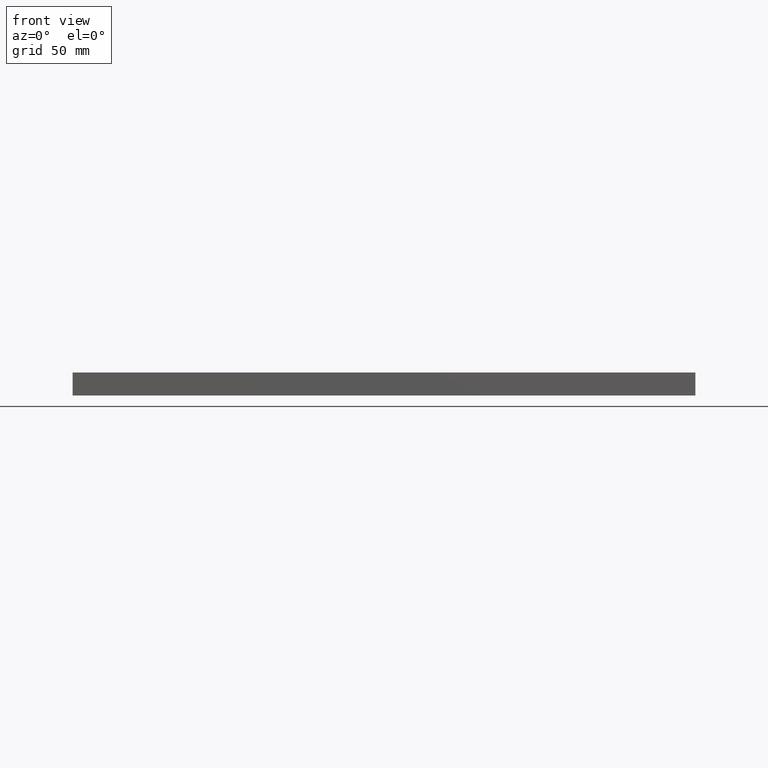
[diagram: clean part render]
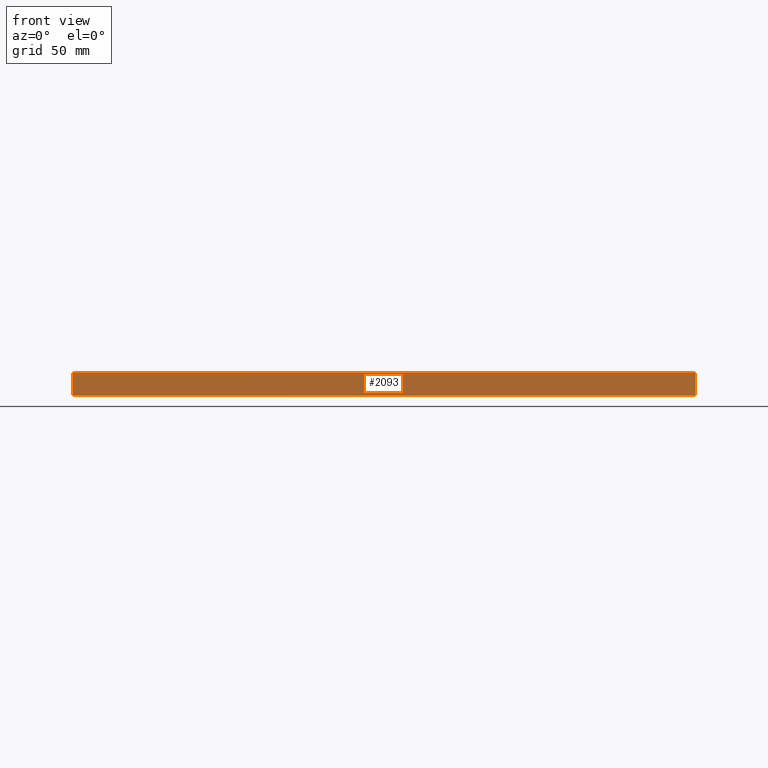
[diagram: same view with one face highlighted and labeled with its STEP entity id]
A machine part, front view. The second image highlights one B-rep face of the part: STEP entity #2093.
In plain terms, the highlighted planar face has unit normal (0, 1, 0).
Its self-contained STEP definition (entity closure, byte-faithful):
#66 = VECTOR ( 'NONE', #5672, 1000.000000000000000 ) ;
#92 = DIRECTION ( 'NONE',  ( 0.0000000000000000000, -0.0000000000000000000, 1.000000000000000000 ) ) ;
#586 = FACE_OUTER_BOUND ( 'NONE', #2677, .T. ) ;
#662 = CARTESIAN_POINT ( 'NONE',  ( 0.0000000000000000000, 0.0000000000000000000, 18.00000000000000000 ) ) ;
#1140 = CARTESIAN_POINT ( 'NONE',  ( 0.0000000000000000000, 0.0000000000000000000, 0.0000000000000000000 ) ) ;
#1345 = CARTESIAN_POINT ( 'NONE',  ( 0.0000000000000000000, 0.0000000000000000000, 18.00000000000000000 ) ) ;
#1358 = AXIS2_PLACEMENT_3D ( 'NONE', #1345, #2406, #92 ) ;
#1758 = VERTEX_POINT ( 'NONE', #5033 ) ;
#2049 = VECTOR ( 'NONE', #6998, 1000.000000000000000 ) ;
#2093 = ADVANCED_FACE ( 'NONE', ( #586 ), #4625, .F. ) ;
#2118 = EDGE_CURVE ( 'NONE', #7083, #1758, #3269, .T. ) ;
#2251 = VECTOR ( 'NONE', #6506, 1000.000000000000000 ) ;
#2377 = CARTESIAN_POINT ( 'NONE',  ( 488.0000000000000000, 0.0000000000000000000, 18.00000000000000000 ) ) ;
#2406 = DIRECTION ( 'NONE',  ( 0.0000000000000000000, 1.000000000000000000, 0.0000000000000000000 ) ) ;
#2677 = EDGE_LOOP ( 'NONE', ( #7534, #2749, #6707, #3767 ) ) ;
#2749 = ORIENTED_EDGE ( 'NONE', *, *, #2118, .F. ) ;
#2842 = CARTESIAN_POINT ( 'NONE',  ( 0.0000000000000000000, 0.0000000000000000000, 0.0000000000000000000 ) ) ;
#2968 = CARTESIAN_POINT ( 'NONE',  ( 488.0000000000000000, 0.0000000000000000000, 18.00000000000000000 ) ) ;
#3269 = LINE ( 'NONE', #2377, #2251 ) ;
#3522 = VECTOR ( 'NONE', #3661, 1000.000000000000000 ) ;
#3661 = DIRECTION ( 'NONE',  ( 1.000000000000000000, 0.0000000000000000000, 0.0000000000000000000 ) ) ;
#3673 = CARTESIAN_POINT ( 'NONE',  ( 0.0000000000000000000, 0.0000000000000000000, 18.00000000000000000 ) ) ;
#3767 = ORIENTED_EDGE ( 'NONE', *, *, #4853, .T. ) ;
#3934 = EDGE_CURVE ( 'NONE', #4504, #1758, #7551, .T. ) ;
#4426 = LINE ( 'NONE', #662, #3522 ) ;
#4504 = VERTEX_POINT ( 'NONE', #1140 ) ;
#4625 = PLANE ( 'NONE',  #1358 ) ;
#4728 = VERTEX_POINT ( 'NONE', #3673 ) ;
#4736 = LINE ( 'NONE', #5954, #66 ) ;
#4853 = EDGE_CURVE ( 'NONE', #4728, #4504, #4736, .T. ) ;
#5033 = CARTESIAN_POINT ( 'NONE',  ( 488.0000000000000000, 0.0000000000000000000, 0.0000000000000000000 ) ) ;
#5672 = DIRECTION ( 'NONE',  ( -0.0000000000000000000, -0.0000000000000000000, -1.000000000000000000 ) ) ;
#5954 = CARTESIAN_POINT ( 'NONE',  ( 0.0000000000000000000, 0.0000000000000000000, 18.00000000000000000 ) ) ;
#6506 = DIRECTION ( 'NONE',  ( -0.0000000000000000000, -0.0000000000000000000, -1.000000000000000000 ) ) ;
#6701 = EDGE_CURVE ( 'NONE', #4728, #7083, #4426, .T. ) ;
#6707 = ORIENTED_EDGE ( 'NONE', *, *, #6701, .F. ) ;
#6998 = DIRECTION ( 'NONE',  ( 1.000000000000000000, 0.0000000000000000000, 0.0000000000000000000 ) ) ;
#7083 = VERTEX_POINT ( 'NONE', #2968 ) ;
#7534 = ORIENTED_EDGE ( 'NONE', *, *, #3934, .T. ) ;
#7551 = LINE ( 'NONE', #2842, #2049 ) ;